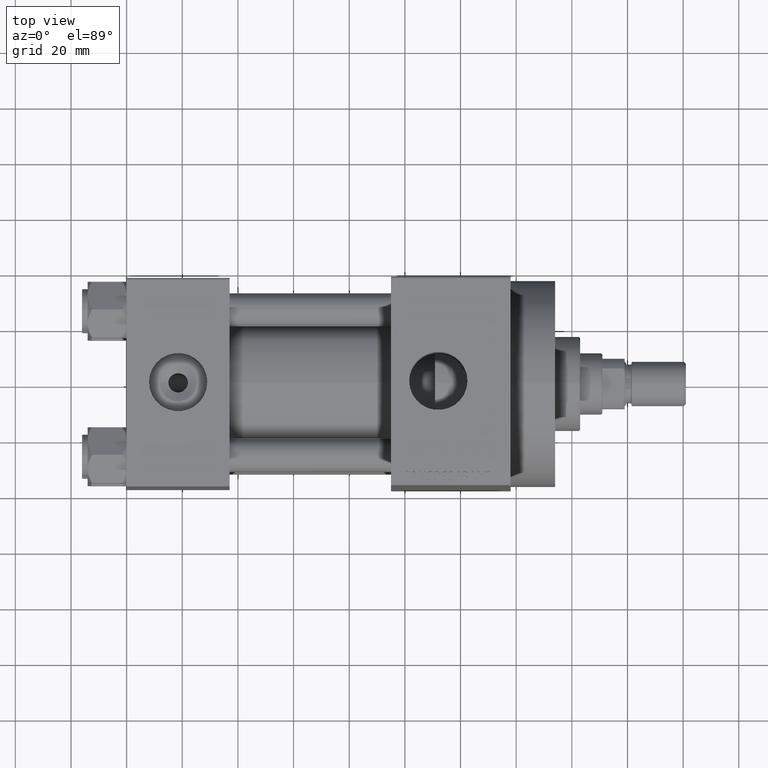
[diagram: clean part render]
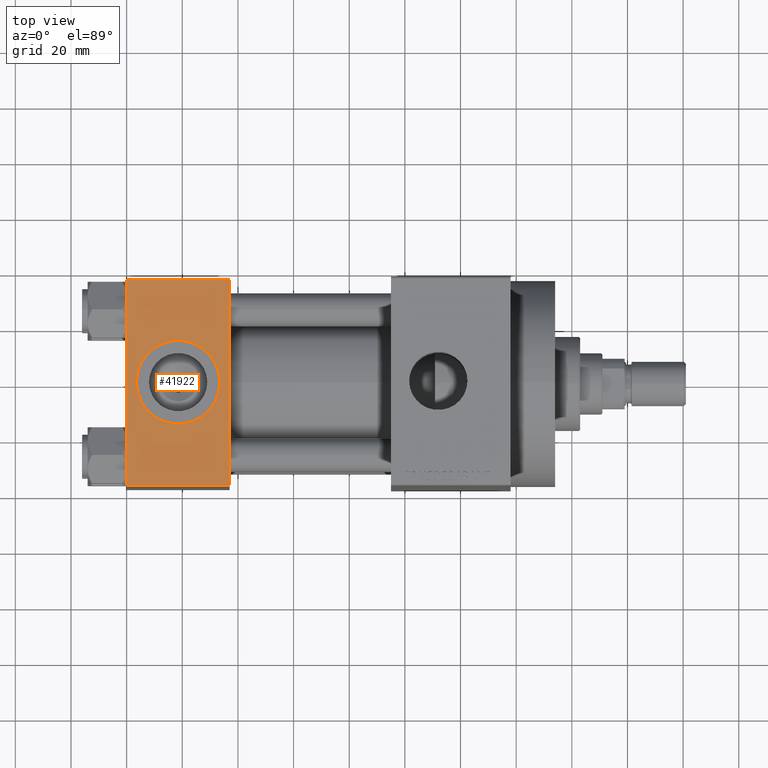
[diagram: same view with one face highlighted and labeled with its STEP entity id]
A machine part, top view. The second image highlights one B-rep face of the part: STEP entity #41922.
In plain terms, the highlighted planar face has unit normal (0, 0, -1).
Its self-contained STEP definition (entity closure, byte-faithful):
#276 = AXIS2_PLACEMENT_3D ( 'NONE', #25091, #6521, #14488 ) ;
#973 = CARTESIAN_POINT ( 'NONE',  ( 18.50000000000000000, -5.204170427930421283E-15, 37.50000000000000000 ) ) ;
#1383 = VERTEX_POINT ( 'NONE', #24105 ) ;
#1459 = DIRECTION ( 'NONE',  ( 1.000000000000000000, 0.000000000000000000, 0.000000000000000000 ) ) ;
#2341 = ORIENTED_EDGE ( 'NONE', *, *, #25444, .F. ) ;
#2921 = PLANE ( 'NONE',  #276 ) ;
#3413 = FACE_BOUND ( 'NONE', #28402, .T. ) ;
#3741 = DIRECTION ( 'NONE',  ( 0.000000000000000000, -1.000000000000000000, -9.251858538542971581E-17 ) ) ;
#3843 = CARTESIAN_POINT ( 'NONE',  ( 33.50000000000000000, -5.204170427930421283E-15, 37.50000000000000000 ) ) ;
#4233 = DIRECTION ( 'NONE',  ( 1.000000000000000000, 0.000000000000000000, 0.000000000000000000 ) ) ;
#6521 = DIRECTION ( 'NONE',  ( 0.000000000000000000, 9.251858538542971581E-17, -1.000000000000000000 ) ) ;
#7011 = FACE_OUTER_BOUND ( 'NONE', #36932, .T. ) ;
#8976 = LINE ( 'NONE', #39090, #19762 ) ;
#10354 = VERTEX_POINT ( 'NONE', #27086 ) ;
#12117 = CARTESIAN_POINT ( 'NONE',  ( 0.000000000000000000, 36.99999999999999289, 37.50000000000000000 ) ) ;
#12168 = CARTESIAN_POINT ( 'NONE',  ( 37.00000000000000000, -37.00000000000000711, 37.49999999999999289 ) ) ;
#13568 = VECTOR ( 'NONE', #32158, 1000.000000000000000 ) ;
#14262 = VERTEX_POINT ( 'NONE', #3843 ) ;
#14488 = DIRECTION ( 'NONE',  ( 0.000000000000000000, 1.000000000000000000, 9.251858538542971581E-17 ) ) ;
#14518 = AXIS2_PLACEMENT_3D ( 'NONE', #973, #16395, #1459 ) ;
#16122 = ORIENTED_EDGE ( 'NONE', *, *, #34340, .F. ) ;
#16395 = DIRECTION ( 'NONE',  ( 0.000000000000000000, 0.000000000000000000, 1.000000000000000000 ) ) ;
#17463 = CARTESIAN_POINT ( 'NONE',  ( 0.000000000000000000, 36.99999999999999289, 37.50000000000000000 ) ) ;
#17689 = VERTEX_POINT ( 'NONE', #43047 ) ;
#19762 = VECTOR ( 'NONE', #31615, 1000.000000000000000 ) ;
#20294 = AXIS2_PLACEMENT_3D ( 'NONE', #24609, #35231, #31160 ) ;
#24105 = CARTESIAN_POINT ( 'NONE',  ( 37.00000000000000000, -37.00000000000000711, 37.49999999999999289 ) ) ;
#24609 = CARTESIAN_POINT ( 'NONE',  ( 18.50000000000000000, -5.204170427930421283E-15, 37.50000000000000000 ) ) ;
#25091 = CARTESIAN_POINT ( 'NONE',  ( 37.00000000000000000, 37.49999999999999289, 37.50000000000000000 ) ) ;
#25388 = ORIENTED_EDGE ( 'NONE', *, *, #40496, .T. ) ;
#25444 = EDGE_CURVE ( 'NONE', #17689, #1383, #8976, .T. ) ;
#25699 = EDGE_CURVE ( 'NONE', #17689, #46067, #32388, .T. ) ;
#27086 = CARTESIAN_POINT ( 'NONE',  ( 3.499999999999997780, -3.367200229209391300E-15, 37.50000000000000000 ) ) ;
#27832 = CARTESIAN_POINT ( 'NONE',  ( 0.000000000000000000, -37.00000000000000711, 37.49999999999999289 ) ) ;
#28402 = EDGE_LOOP ( 'NONE', ( #16122, #37680 ) ) ;
#30290 = VECTOR ( 'NONE', #4233, 1000.000000000000000 ) ;
#31160 = DIRECTION ( 'NONE',  ( 1.000000000000000000, 0.000000000000000000, 0.000000000000000000 ) ) ;
#31615 = DIRECTION ( 'NONE',  ( 0.000000000000000000, -1.000000000000000000, -9.251858538542971581E-17 ) ) ;
#32158 = DIRECTION ( 'NONE',  ( -1.000000000000000000, 0.000000000000000000, 0.000000000000000000 ) ) ;
#32388 = LINE ( 'NONE', #17463, #13568 ) ;
#32617 = CIRCLE ( 'NONE', #20294, 15.00000000000000355 ) ;
#32896 = LINE ( 'NONE', #41051, #38806 ) ;
#33759 = CIRCLE ( 'NONE', #14518, 15.00000000000000355 ) ;
#34340 = EDGE_CURVE ( 'NONE', #14262, #10354, #33759, .T. ) ;
#34876 = ORIENTED_EDGE ( 'NONE', *, *, #42707, .T. ) ;
#35231 = DIRECTION ( 'NONE',  ( 0.000000000000000000, 0.000000000000000000, 1.000000000000000000 ) ) ;
#36622 = ORIENTED_EDGE ( 'NONE', *, *, #25699, .T. ) ;
#36932 = EDGE_LOOP ( 'NONE', ( #34876, #25388, #2341, #36622 ) ) ;
#37680 = ORIENTED_EDGE ( 'NONE', *, *, #41851, .F. ) ;
#37723 = LINE ( 'NONE', #12168, #30290 ) ;
#38806 = VECTOR ( 'NONE', #3741, 1000.000000000000000 ) ;
#39090 = CARTESIAN_POINT ( 'NONE',  ( 37.00000000000000000, 37.49999999999999289, 37.50000000000000000 ) ) ;
#40496 = EDGE_CURVE ( 'NONE', #47596, #1383, #37723, .T. ) ;
#41051 = CARTESIAN_POINT ( 'NONE',  ( 0.000000000000000000, 37.49999999999999289, 37.50000000000000000 ) ) ;
#41851 = EDGE_CURVE ( 'NONE', #10354, #14262, #32617, .T. ) ;
#41922 = ADVANCED_FACE ( 'NONE', ( #3413, #7011 ), #2921, .F. ) ;
#42707 = EDGE_CURVE ( 'NONE', #46067, #47596, #32896, .T. ) ;
#43047 = CARTESIAN_POINT ( 'NONE',  ( 37.00000000000000000, 36.99999999999999289, 37.50000000000000000 ) ) ;
#46067 = VERTEX_POINT ( 'NONE', #12117 ) ;
#47596 = VERTEX_POINT ( 'NONE', #27832 ) ;